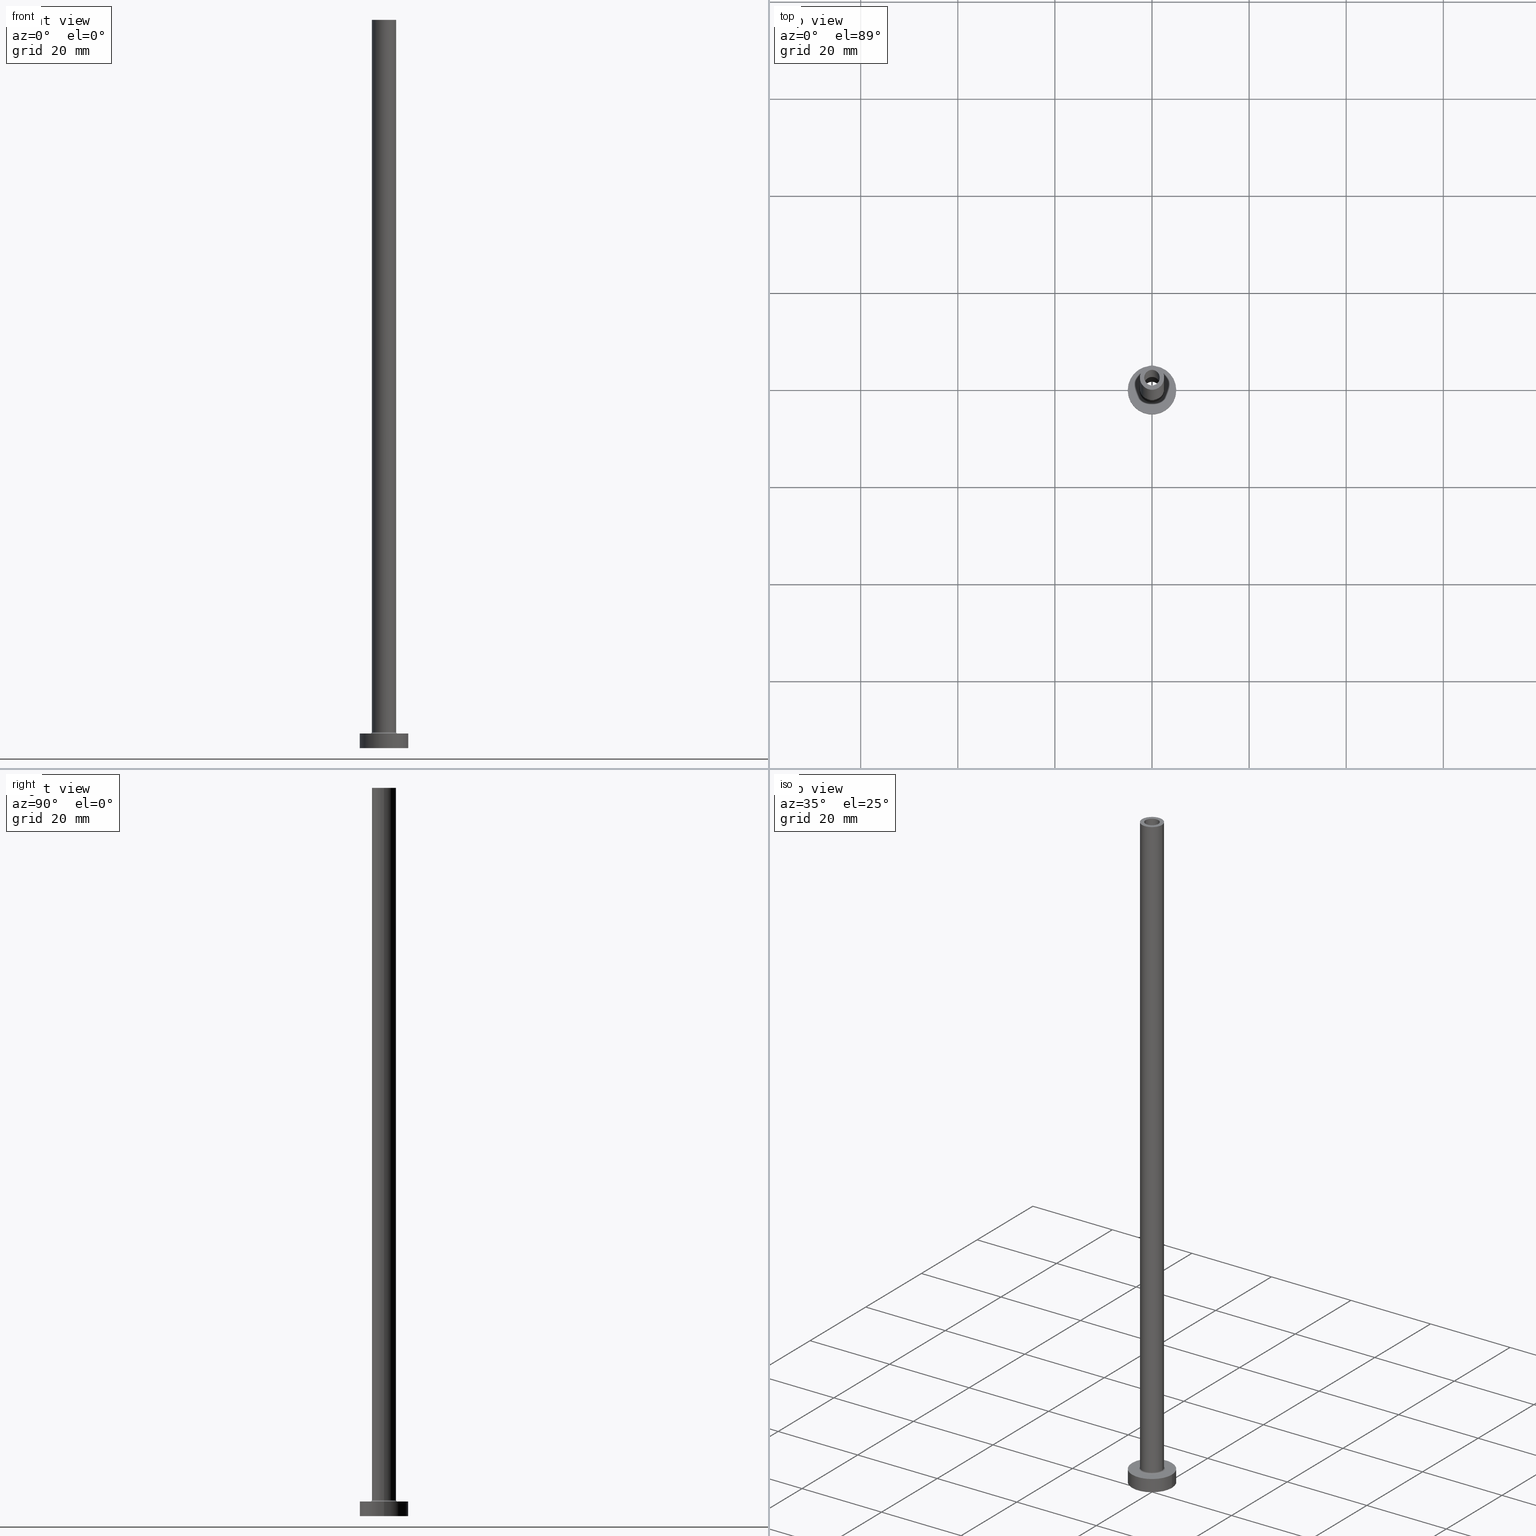
[diagram: canonical four-view strip — front | top / right | iso, engineering-drawing reading convention]
A machine part, canonical four-view strip (front | top / right | iso — engineering-drawing reading convention). The complete STEP part file that produces these views, byte-faithful:
ISO-10303-21;
HEADER;
FILE_DESCRIPTION (( 'STEP AP203' ),
    '1' );
FILE_NAME ('9501.STEP',
    '2023-02-13T12:02:50',
    ( '' ),
    ( '' ),
    'SwSTEP 2.0',
    'SolidWorks 2019',
    '' );
FILE_SCHEMA (( 'CONFIG_CONTROL_DESIGN' ));
ENDSEC;

DATA;
#1 = EDGE_LOOP ( 'NONE', ( #49, #422, #199, #314 ) ) ;
#2 = PLANE ( 'NONE',  #75 ) ;
#3 = ORIENTED_EDGE ( 'NONE', *, *, #310, .T. ) ;
#4 = EDGE_LOOP ( 'NONE', ( #117, #219 ) ) ;
#5 = DIRECTION ( 'NONE',  ( -1.000000000000000000, 0.000000000000000000, 0.000000000000000000 ) ) ;
#6 = CARTESIAN_POINT ( 'NONE',  ( 0.000000000000000000, 0.000000000000000000, 150.0000000000000000 ) ) ;
#7 = AXIS2_PLACEMENT_3D ( 'NONE', #386, #149, #81 ) ;
#8 = DATE_AND_TIME ( #389, #9 ) ;
#9 = LOCAL_TIME ( 13, 2, 50.00000000000000000, #233 ) ;
#10 = APPLICATION_CONTEXT ( 'configuration controlled 3d designs of mechanical parts and assemblies' ) ;
#11 = DIRECTION ( 'NONE',  ( -1.000000000000000000, 0.000000000000000000, 0.000000000000000000 ) ) ;
#12 = EDGE_CURVE ( 'NONE', #303, #198, #58, .T. ) ;
#13 = DIRECTION ( 'NONE',  ( 0.000000000000000000, 0.000000000000000000, -1.000000000000000000 ) ) ;
#14 = CARTESIAN_POINT ( 'NONE',  ( 0.000000000000000000, 0.000000000000000000, 3.000000000000000000 ) ) ;
#15 = VERTEX_POINT ( 'NONE', #67 ) ;
#16 = APPROVAL_DATE_TIME ( #8, #18 ) ;
#17 = DIRECTION ( 'NONE',  ( -0.000000000000000000, -0.000000000000000000, -1.000000000000000000 ) ) ;
#18 = APPROVAL ( #262, 'NEUR�EN�' ) ;
#19 = EDGE_LOOP ( 'NONE', ( #101, #249 ) ) ;
#20 = DIRECTION ( 'NONE',  ( -1.000000000000000000, 0.000000000000000000, 0.000000000000000000 ) ) ;
#21 = ADVANCED_FACE ( 'NONE', ( #210 ), #29, .F. ) ;
#22 = DIRECTION ( 'NONE',  ( 0.000000000000000000, 0.000000000000000000, 1.000000000000000000 ) ) ;
#23 = AXIS2_PLACEMENT_3D ( 'NONE', #431, #390, #84 ) ;
#24 = CARTESIAN_POINT ( 'NONE',  ( 1.750000000000000000, 2.143131898507868297E-16, 109.9497474683058442 ) ) ;
#25 = CC_DESIGN_APPROVAL ( #18, ( #129 ) ) ;
#26 = CC_DESIGN_PERSON_AND_ORGANIZATION_ASSIGNMENT ( #461, #138, ( #450 ) ) ;
#27 = VECTOR ( 'NONE', #186, 1000.000000000000000 ) ;
#28 = CARTESIAN_POINT ( 'NONE',  ( -1.750000000000000000, 0.000000000000000000, 105.0000000000000000 ) ) ;
#29 = TOROIDAL_SURFACE ( 'NONE', #231, 2.799999999999999822, 0.2999999999999999889 ) ;
#30 = AXIS2_PLACEMENT_3D ( 'NONE', #43, #152, #301 ) ;
#31 = ORIENTED_EDGE ( 'NONE', *, *, #375, .T. ) ;
#32 = EDGE_LOOP ( 'NONE', ( #57, #349, #333, #35 ) ) ;
#33 = EDGE_LOOP ( 'NONE', ( #41, #376, #251, #36 ) ) ;
#34 = CARTESIAN_POINT ( 'NONE',  ( 0.000000000000000000, 0.000000000000000000, 0.000000000000000000 ) ) ;
#35 = ORIENTED_EDGE ( 'NONE', *, *, #100, .T. ) ;
#36 = ORIENTED_EDGE ( 'NONE', *, *, #122, .F. ) ;
#37 = ORIENTED_EDGE ( 'NONE', *, *, #240, .T. ) ;
#38 = DESIGN_CONTEXT ( 'detailed design', #10, 'design' ) ;
#39 = APPROVAL_ROLE ( '' ) ;
#40 = APPROVAL_STATUS ( 'not_yet_approved' ) ;
#41 = ORIENTED_EDGE ( 'NONE', *, *, #100, .F. ) ;
#42 = DIRECTION ( 'NONE',  ( 1.000000000000000000, 0.000000000000000000, 0.000000000000000000 ) ) ;
#43 = CARTESIAN_POINT ( 'NONE',  ( 0.000000000000000000, 0.000000000000000000, 0.000000000000000000 ) ) ;
#44 = DIRECTION ( 'NONE',  ( 1.000000000000000000, 0.000000000000000000, 0.000000000000000000 ) ) ;
#45 = CIRCLE ( 'NONE', #331, 2.799999999999999822 ) ;
#46 = COORDINATED_UNIVERSAL_TIME_OFFSET ( 1, 0, .AHEAD. ) ;
#47 = DIRECTION ( 'NONE',  ( -0.000000000000000000, -0.000000000000000000, -1.000000000000000000 ) ) ;
#48 = CARTESIAN_POINT ( 'NONE',  ( 0.000000000000000000, 0.000000000000000000, 3.000000000000000000 ) ) ;
#49 = ORIENTED_EDGE ( 'NONE', *, *, #213, .F. ) ;
#50 = APPROVAL_ROLE ( '' ) ;
#51 = DIRECTION ( 'NONE',  ( 0.000000000000000000, 0.000000000000000000, -1.000000000000000000 ) ) ;
#52 = EDGE_LOOP ( 'NONE', ( #407, #3, #31, #163 ) ) ;
#53 = AXIS2_PLACEMENT_3D ( 'NONE', #324, #195, #151 ) ;
#54 = CARTESIAN_POINT ( 'NONE',  ( -2.500000000000000000, 0.000000000000000000, 3.299999999999997158 ) ) ;
#55 = DIRECTION ( 'NONE',  ( 0.000000000000000000, 0.000000000000000000, 1.000000000000000000 ) ) ;
#56 = CARTESIAN_POINT ( 'NONE',  ( 0.000000000000000000, 0.000000000000000000, 3.299999999999997158 ) ) ;
#57 = ORIENTED_EDGE ( 'NONE', *, *, #383, .F. ) ;
#58 = CIRCLE ( 'NONE', #102, 2.500000000000000000 ) ;
#59 = ORGANIZATION ( 'NEUR�EN�', 'NEUR�EN�', '' ) ;
#60 = APPROVAL ( #435, 'NEUR�EN�' ) ;
#61 = FACE_OUTER_BOUND ( 'NONE', #33, .T. ) ;
#62 = AXIS2_PLACEMENT_3D ( 'NONE', #34, #211, #319 ) ;
#63 = ORIENTED_EDGE ( 'NONE', *, *, #95, .F. ) ;
#64 = EDGE_CURVE ( 'NONE', #125, #198, #260, .T. ) ;
#65 = APPLICATION_PROTOCOL_DEFINITION ( 'international standard', 'config_control_design', 1994, #449 ) ;
#66 = CARTESIAN_POINT ( 'NONE',  ( -2.799999999999999822, 3.429011037612588783E-16, 3.299999999999997158 ) ) ;
#67 = CARTESIAN_POINT ( 'NONE',  ( 2.799999999999999822, 0.000000000000000000, 2.999999999999998668 ) ) ;
#68 = FACE_BOUND ( 'NONE', #276, .T. ) ;
#69 = VERTEX_POINT ( 'NONE', #320 ) ;
#70 = CARTESIAN_POINT ( 'NONE',  ( 0.000000000000000000, 0.000000000000000000, 3.299999999999997158 ) ) ;
#71 = PLANE ( 'NONE',  #30 ) ;
#72 = DIRECTION ( 'NONE',  ( 0.000000000000000000, 0.000000000000000000, 1.000000000000000000 ) ) ;
#73 = AXIS2_PLACEMENT_3D ( 'NONE', #433, #51, #20 ) ;
#74 = APPROVAL_DATE_TIME ( #261, #60 ) ;
#75 = AXIS2_PLACEMENT_3D ( 'NONE', #384, #377, #247 ) ;
#76 = CYLINDRICAL_SURFACE ( 'NONE', #53, 5.000000000000000000 ) ;
#77 = DIRECTION ( 'NONE',  ( -0.000000000000000000, -0.000000000000000000, -1.000000000000000000 ) ) ;
#78 = VERTEX_POINT ( 'NONE', #406 ) ;
#79 = CALENDAR_DATE ( 2023, 13, 2 ) ;
#80 = FACE_OUTER_BOUND ( 'NONE', #1, .T. ) ;
#81 = DIRECTION ( 'NONE',  ( 1.000000000000000000, 0.000000000000000000, 0.000000000000000000 ) ) ;
#82 = VECTOR ( 'NONE', #403, 1000.000000000000000 ) ;
#83 = COORDINATED_UNIVERSAL_TIME_OFFSET ( 1, 0, .AHEAD. ) ;
#84 = DIRECTION ( 'NONE',  ( 1.000000000000000000, 0.000000000000000000, -0.000000000000000000 ) ) ;
#85 = EDGE_LOOP ( 'NONE', ( #237, #215, #37, #63 ) ) ;
#86 = DIRECTION ( 'NONE',  ( 0.000000000000000000, 0.000000000000000000, -1.000000000000000000 ) ) ;
#87 = CIRCLE ( 'NONE', #7, 1.750000000000000000 ) ;
#88 = LINE ( 'NONE', #24, #290 ) ;
#89 = AXIS2_PLACEMENT_3D ( 'NONE', #400, #22, #304 ) ;
#90 = EDGE_CURVE ( 'NONE', #159, #119, #88, .T. ) ;
#91 = VECTOR ( 'NONE', #427, 1000.000000000000000 ) ;
#92 = DIRECTION ( 'NONE',  ( 1.000000000000000000, 0.000000000000000000, 0.000000000000000000 ) ) ;
#93 = ORIENTED_EDGE ( 'NONE', *, *, #90, .T. ) ;
#94 = APPROVAL ( #40, 'NEUR�EN�' ) ;
#95 = EDGE_CURVE ( 'NONE', #160, #288, #411, .T. ) ;
#96 = ORIENTED_EDGE ( 'NONE', *, *, #264, .T. ) ;
#97 = MECHANICAL_CONTEXT ( 'NONE', #449, 'mechanical' ) ;
#98 = ADVANCED_FACE ( 'NONE', ( #168, #128 ), #307, .T. ) ;
#99 = CARTESIAN_POINT ( 'NONE',  ( 0.000000000000000000, 0.000000000000000000, 105.0000000000000000 ) ) ;
#100 = EDGE_CURVE ( 'NONE', #198, #303, #113, .T. ) ;
#101 = ORIENTED_EDGE ( 'NONE', *, *, #274, .T. ) ;
#102 = AXIS2_PLACEMENT_3D ( 'NONE', #246, #289, #255 ) ;
#103 = DIRECTION ( 'NONE',  ( -1.000000000000000000, 1.224646799147353207E-16, 0.000000000000000000 ) ) ;
#104 = DIRECTION ( 'NONE',  ( 0.000000000000000000, 0.000000000000000000, 1.000000000000000000 ) ) ;
#105 = ADVANCED_BREP_SHAPE_REPRESENTATION ( '9501', ( #134, #62 ), #130 ) ;
#106 = CIRCLE ( 'NONE', #172, 2.799999999999999822 ) ;
#107 = PERSON_AND_ORGANIZATION_ROLE ( 'classification_officer' ) ;
#108 = DIRECTION ( 'NONE',  ( 1.000000000000000000, 0.000000000000000000, 0.000000000000000000 ) ) ;
#109 = DIRECTION ( 'NONE',  ( 0.000000000000000000, 0.000000000000000000, -1.000000000000000000 ) ) ;
#110 = DATE_AND_TIME ( #268, #306 ) ;
#111 = PRODUCT_DEFINITION ( 'NEZN�M�', '', #212, #38 ) ;
#112 = DIRECTION ( 'NONE',  ( 1.000000000000000000, 0.000000000000000000, 0.000000000000000000 ) ) ;
#113 = CIRCLE ( 'NONE', #177, 2.500000000000000000 ) ;
#114 = DIRECTION ( 'NONE',  ( -0.000000000000000000, -0.000000000000000000, -1.000000000000000000 ) ) ;
#115 = CIRCLE ( 'NONE', #136, 1.750000000000000000 ) ;
#116 = DIRECTION ( 'NONE',  ( 1.000000000000000000, 0.000000000000000000, 0.000000000000000000 ) ) ;
#117 = ORIENTED_EDGE ( 'NONE', *, *, #245, .F. ) ;
#118 = CARTESIAN_POINT ( 'NONE',  ( 2.500000000000000000, 3.061616997868383141E-16, 3.299999999999997158 ) ) ;
#119 = VERTEX_POINT ( 'NONE', #281 ) ;
#120 = EDGE_LOOP ( 'NONE', ( #425, #270 ) ) ;
#121 = ORIENTED_EDGE ( 'NONE', *, *, #170, .T. ) ;
#122 = EDGE_CURVE ( 'NONE', #303, #15, #291, .T. ) ;
#123 = VERTEX_POINT ( 'NONE', #174 ) ;
#124 = CIRCLE ( 'NONE', #171, 1.750000000000000000 ) ;
#125 = VERTEX_POINT ( 'NONE', #280 ) ;
#126 = CARTESIAN_POINT ( 'NONE',  ( -5.000000000000000000, 0.000000000000000000, 3.000000000000000000 ) ) ;
#127 = CARTESIAN_POINT ( 'NONE',  ( 1.600000000000000089, 1.959434878635764737E-16, 105.0000000000000000 ) ) ;
#128 = FACE_OUTER_BOUND ( 'NONE', #267, .T. ) ;
#129 = SECURITY_CLASSIFICATION ( '', '', #187 ) ;
#130 =( GEOMETRIC_REPRESENTATION_CONTEXT ( 3 ) GLOBAL_UNCERTAINTY_ASSIGNED_CONTEXT ( ( #217 ) ) GLOBAL_UNIT_ASSIGNED_CONTEXT ( ( #175, #417, #141 ) ) REPRESENTATION_CONTEXT ( 'NONE', 'WORKASPACE' ) );
#131 = DIRECTION ( 'NONE',  ( -0.000000000000000000, -0.000000000000000000, -1.000000000000000000 ) ) ;
#132 = CLOSED_SHELL ( 'NONE', ( #421, #208, #447, #242, #239, #202, #98, #292, #424, #173, #21, #279, #440, #253 ) ) ;
#133 = CARTESIAN_POINT ( 'NONE',  ( -5.000000000000000000, 0.000000000000000000, 3.000000000000000000 ) ) ;
#134 = MANIFOLD_SOLID_BREP ( 'Odebrat vysunut�m4', #132 ) ;
#135 = DIRECTION ( 'NONE',  ( 0.000000000000000000, 0.000000000000000000, 1.000000000000000000 ) ) ;
#136 = AXIS2_PLACEMENT_3D ( 'NONE', #391, #156, #325 ) ;
#137 = VERTEX_POINT ( 'NONE', #127 ) ;
#138 = PERSON_AND_ORGANIZATION_ROLE ( 'design_owner' ) ;
#139 = VERTEX_POINT ( 'NONE', #28 ) ;
#140 = ORIENTED_EDGE ( 'NONE', *, *, #282, .T. ) ;
#141 =( NAMED_UNIT ( * ) SI_UNIT ( $, .STERADIAN. ) SOLID_ANGLE_UNIT ( ) );
#142 = ORIENTED_EDGE ( 'NONE', *, *, #371, .T. ) ;
#143 = LINE ( 'NONE', #423, #226 ) ;
#144 = CIRCLE ( 'NONE', #278, 5.000000000000000000 ) ;
#145 = CC_DESIGN_APPROVAL ( #94, ( #111 ) ) ;
#146 = CARTESIAN_POINT ( 'NONE',  ( -5.000000000000000000, 0.000000000000000000, 0.000000000000000000 ) ) ;
#147 = APPROVAL_DATE_TIME ( #426, #94 ) ;
#148 = FACE_OUTER_BOUND ( 'NONE', #229, .T. ) ;
#149 = DIRECTION ( 'NONE',  ( 0.000000000000000000, 0.000000000000000000, 1.000000000000000000 ) ) ;
#150 = PERSON_AND_ORGANIZATION_ROLE ( 'creator' ) ;
#151 = DIRECTION ( 'NONE',  ( -1.000000000000000000, 0.000000000000000000, 0.000000000000000000 ) ) ;
#152 = DIRECTION ( 'NONE',  ( 0.000000000000000000, 0.000000000000000000, 1.000000000000000000 ) ) ;
#153 = VERTEX_POINT ( 'NONE', #248 ) ;
#154 = PERSON_AND_ORGANIZATION ( #220, #59 ) ;
#155 = DIRECTION ( 'NONE',  ( 1.000000000000000000, 0.000000000000000000, 0.000000000000000000 ) ) ;
#156 = DIRECTION ( 'NONE',  ( 0.000000000000000000, 0.000000000000000000, 1.000000000000000000 ) ) ;
#157 = AXIS2_PLACEMENT_3D ( 'NONE', #273, #322, #192 ) ;
#158 = AXIS2_PLACEMENT_3D ( 'NONE', #214, #347, #343 ) ;
#159 = VERTEX_POINT ( 'NONE', #345 ) ;
#160 = VERTEX_POINT ( 'NONE', #133 ) ;
#161 = PERSON_AND_ORGANIZATION ( #220, #59 ) ;
#162 = CC_DESIGN_PERSON_AND_ORGANIZATION_ASSIGNMENT ( #398, #223, ( #212 ) ) ;
#163 = ORIENTED_EDGE ( 'NONE', *, *, #164, .F. ) ;
#164 = EDGE_CURVE ( 'NONE', #137, #69, #399, .T. ) ;
#165 = ORIENTED_EDGE ( 'NONE', *, *, #122, .T. ) ;
#166 = EDGE_CURVE ( 'NONE', #305, #137, #218, .T. ) ;
#167 = DIRECTION ( 'NONE',  ( 0.000000000000000000, 0.000000000000000000, 1.000000000000000000 ) ) ;
#168 = FACE_BOUND ( 'NONE', #418, .T. ) ;
#169 = ORIENTED_EDGE ( 'NONE', *, *, #201, .T. ) ;
#170 = EDGE_CURVE ( 'NONE', #139, #78, #452, .T. ) ;
#171 = AXIS2_PLACEMENT_3D ( 'NONE', #271, #47, #222 ) ;
#172 = AXIS2_PLACEMENT_3D ( 'NONE', #437, #114, #394 ) ;
#173 = ADVANCED_FACE ( 'NONE', ( #68, #221 ), #354, .T. ) ;
#174 = CARTESIAN_POINT ( 'NONE',  ( -1.600000000000000089, 0.000000000000000000, 150.0000000000000000 ) ) ;
#175 =( LENGTH_UNIT ( ) NAMED_UNIT ( * ) SI_UNIT ( .MILLI., .METRE. ) );
#176 = FACE_OUTER_BOUND ( 'NONE', #32, .T. ) ;
#177 = AXIS2_PLACEMENT_3D ( 'NONE', #56, #167, #92 ) ;
#178 = DIRECTION ( 'NONE',  ( 1.000000000000000000, 0.000000000000000000, 0.000000000000000000 ) ) ;
#179 = EDGE_CURVE ( 'NONE', #119, #78, #335, .T. ) ;
#180 = ORIENTED_EDGE ( 'NONE', *, *, #311, .T. ) ;
#181 = DIRECTION ( 'NONE',  ( -1.000000000000000000, 0.000000000000000000, 0.000000000000000000 ) ) ;
#182 = LOCAL_TIME ( 13, 2, 50.00000000000000000, #46 ) ;
#183 = ORIENTED_EDGE ( 'NONE', *, *, #12, .F. ) ;
#184 = COORDINATED_UNIVERSAL_TIME_OFFSET ( 1, 0, .AHEAD. ) ;
#185 = FACE_OUTER_BOUND ( 'NONE', #120, .T. ) ;
#186 = DIRECTION ( 'NONE',  ( -0.000000000000000000, -0.000000000000000000, -1.000000000000000000 ) ) ;
#187 = SECURITY_CLASSIFICATION_LEVEL ( 'unclassified' ) ;
#188 = DIRECTION ( 'NONE',  ( -1.000000000000000000, 0.000000000000000000, 0.000000000000000000 ) ) ;
#189 = FACE_OUTER_BOUND ( 'NONE', #85, .T. ) ;
#190 = CARTESIAN_POINT ( 'NONE',  ( 0.000000000000000000, 0.000000000000000000, 150.0000000000000000 ) ) ;
#191 = ORIENTED_EDGE ( 'NONE', *, *, #310, .F. ) ;
#192 = DIRECTION ( 'NONE',  ( -1.000000000000000000, 0.000000000000000000, 0.000000000000000000 ) ) ;
#193 = DIRECTION ( 'NONE',  ( 0.000000000000000000, 0.000000000000000000, 1.000000000000000000 ) ) ;
#194 = PERSON_AND_ORGANIZATION_ROLE ( 'creator' ) ;
#195 = DIRECTION ( 'NONE',  ( -0.000000000000000000, -0.000000000000000000, -1.000000000000000000 ) ) ;
#196 = CARTESIAN_POINT ( 'NONE',  ( 0.000000000000000000, 0.000000000000000000, 150.0000000000000000 ) ) ;
#197 = AXIS2_PLACEMENT_3D ( 'NONE', #256, #420, #181 ) ;
#198 = VERTEX_POINT ( 'NONE', #54 ) ;
#199 = ORIENTED_EDGE ( 'NONE', *, *, #12, .T. ) ;
#200 = DIRECTION ( 'NONE',  ( 1.000000000000000000, 0.000000000000000000, 0.000000000000000000 ) ) ;
#201 = EDGE_CURVE ( 'NONE', #69, #137, #454, .T. ) ;
#202 = ADVANCED_FACE ( 'NONE', ( #234 ), #387, .T. ) ;
#203 = AXIS2_PLACEMENT_3D ( 'NONE', #263, #109, #188 ) ;
#204 = CIRCLE ( 'NONE', #368, 5.000000000000000000 ) ;
#205 = CC_DESIGN_PERSON_AND_ORGANIZATION_ASSIGNMENT ( #265, #107, ( #129 ) ) ;
#206 = ORIENTED_EDGE ( 'NONE', *, *, #166, .T. ) ;
#207 = AXIS2_PLACEMENT_3D ( 'NONE', #451, #445, #401 ) ;
#208 = ADVANCED_FACE ( 'NONE', ( #148 ), #225, .F. ) ;
#209 = AXIS2_PLACEMENT_3D ( 'NONE', #99, #135, #178 ) ;
#210 = FACE_OUTER_BOUND ( 'NONE', #428, .T. ) ;
#211 = DIRECTION ( 'NONE',  ( 0.000000000000000000, 0.000000000000000000, 1.000000000000000000 ) ) ;
#212 = PRODUCT_DEFINITION_FORMATION_WITH_SPECIFIED_SOURCE ( 'LIBOVOLN�', '', #450, .NOT_KNOWN. ) ;
#213 = EDGE_CURVE ( 'NONE', #308, #125, #409, .T. ) ;
#214 = CARTESIAN_POINT ( 'NONE',  ( 0.000000000000000000, 0.000000000000000000, 3.299999999999997158 ) ) ;
#215 = ORIENTED_EDGE ( 'NONE', *, *, #413, .T. ) ;
#216 = AXIS2_PLACEMENT_3D ( 'NONE', #436, #361, #300 ) ;
#217 = UNCERTAINTY_MEASURE_WITH_UNIT (LENGTH_MEASURE( 1.000000000000000082E-05 ), #175, 'distance_accuracy_value', 'NONE');
#218 = LINE ( 'NONE', #348, #241 ) ;
#219 = ORIENTED_EDGE ( 'NONE', *, *, #179, .F. ) ;
#220 = PERSON ( 'NEUR�EN�', 'NEUR�EN�', 'NEUR�EN�', ('NEUR�EN�'), ('NEUR�EN�'), ('NEUR�EN�') ) ;
#221 = FACE_OUTER_BOUND ( 'NONE', #19, .T. ) ;
#222 = DIRECTION ( 'NONE',  ( 1.000000000000000000, 0.000000000000000000, 0.000000000000000000 ) ) ;
#223 = PERSON_AND_ORGANIZATION_ROLE ( 'design_supplier' ) ;
#224 = DIRECTION ( 'NONE',  ( 0.000000000000000000, 0.000000000000000000, -1.000000000000000000 ) ) ;
#225 = CYLINDRICAL_SURFACE ( 'NONE', #73, 1.750000000000000000 ) ;
#226 = VECTOR ( 'NONE', #131, 1000.000000000000000 ) ;
#227 = DIRECTION ( 'NONE',  ( 1.000000000000000000, 0.000000000000000000, 0.000000000000000000 ) ) ;
#228 = CALENDAR_DATE ( 2023, 13, 2 ) ;
#229 = EDGE_LOOP ( 'NONE', ( #402, #93, #456, #415 ) ) ;
#230 = CYLINDRICAL_SURFACE ( 'NONE', #367, 2.500000000000000000 ) ;
#231 = AXIS2_PLACEMENT_3D ( 'NONE', #70, #104, #42 ) ;
#232 = CARTESIAN_POINT ( 'NONE',  ( -2.799999999999999822, 3.429011037612589276E-16, 2.999999999999998668 ) ) ;
#233 = COORDINATED_UNIVERSAL_TIME_OFFSET ( 1, 0, .AHEAD. ) ;
#234 = FACE_OUTER_BOUND ( 'NONE', #257, .T. ) ;
#235 = LINE ( 'NONE', #369, #378 ) ;
#236 = AXIS2_PLACEMENT_3D ( 'NONE', #293, #429, #5 ) ;
#237 = ORIENTED_EDGE ( 'NONE', *, *, #344, .F. ) ;
#238 = ORIENTED_EDGE ( 'NONE', *, *, #375, .F. ) ;
#239 = ADVANCED_FACE ( 'NONE', ( #189 ), #76, .T. ) ;
#240 = EDGE_CURVE ( 'NONE', #243, #288, #258, .T. ) ;
#241 = VECTOR ( 'NONE', #224, 1000.000000000000000 ) ;
#242 = ADVANCED_FACE ( 'NONE', ( #80 ), #230, .T. ) ;
#243 = VERTEX_POINT ( 'NONE', #321 ) ;
#244 = AXIS2_PLACEMENT_3D ( 'NONE', #190, #444, #112 ) ;
#245 = EDGE_CURVE ( 'NONE', #78, #119, #124, .T. ) ;
#246 = CARTESIAN_POINT ( 'NONE',  ( 0.000000000000000000, 0.000000000000000000, 3.299999999999997158 ) ) ;
#247 = DIRECTION ( 'NONE',  ( 1.000000000000000000, 0.000000000000000000, -0.000000000000000000 ) ) ;
#248 = CARTESIAN_POINT ( 'NONE',  ( 5.000000000000000000, 6.123233995736766282E-16, 3.000000000000000000 ) ) ;
#249 = ORIENTED_EDGE ( 'NONE', *, *, #213, .T. ) ;
#250 = LOCAL_TIME ( 13, 2, 50.00000000000000000, #184 ) ;
#251 = ORIENTED_EDGE ( 'NONE', *, *, #315, .F. ) ;
#252 = APPLICATION_PROTOCOL_DEFINITION ( 'international standard', 'config_control_design', 1994, #10 ) ;
#253 = ADVANCED_FACE ( 'NONE', ( #297 ), #363, .F. ) ;
#254 = EDGE_CURVE ( 'NONE', #139, #159, #87, .T. ) ;
#255 = DIRECTION ( 'NONE',  ( 1.000000000000000000, 0.000000000000000000, 0.000000000000000000 ) ) ;
#256 = CARTESIAN_POINT ( 'NONE',  ( 0.000000000000000000, 0.000000000000000000, 150.0000000000000000 ) ) ;
#257 = EDGE_LOOP ( 'NONE', ( #459, #370, #379, #96 ) ) ;
#258 = CIRCLE ( 'NONE', #312, 5.000000000000000000 ) ;
#259 = APPROVAL_PERSON_ORGANIZATION ( #154, #60, #50 ) ;
#260 = LINE ( 'NONE', #385, #27 ) ;
#261 = DATE_AND_TIME ( #79, #182 ) ;
#262 = APPROVAL_STATUS ( 'not_yet_approved' ) ;
#263 = CARTESIAN_POINT ( 'NONE',  ( 0.000000000000000000, 0.000000000000000000, 109.9497474683058442 ) ) ;
#264 = EDGE_CURVE ( 'NONE', #288, #243, #144, .T. ) ;
#265 = PERSON_AND_ORGANIZATION ( #220, #59 ) ;
#266 = CARTESIAN_POINT ( 'NONE',  ( 1.600000000000000089, 1.959434878635764737E-16, 150.0000000000000000 ) ) ;
#267 = EDGE_LOOP ( 'NONE', ( #365, #351 ) ) ;
#268 = CALENDAR_DATE ( 2023, 13, 2 ) ;
#269 = DIRECTION ( 'NONE',  ( 0.000000000000000000, 0.000000000000000000, 1.000000000000000000 ) ) ;
#270 = ORIENTED_EDGE ( 'NONE', *, *, #311, .F. ) ;
#271 = CARTESIAN_POINT ( 'NONE',  ( 0.000000000000000000, 0.000000000000000000, 0.000000000000000000 ) ) ;
#272 = PERSON_AND_ORGANIZATION ( #220, #59 ) ;
#273 = CARTESIAN_POINT ( 'NONE',  ( 0.000000000000000000, 0.000000000000000000, 3.000000000000000000 ) ) ;
#274 = EDGE_CURVE ( 'NONE', #125, #308, #393, .T. ) ;
#275 = CARTESIAN_POINT ( 'NONE',  ( -1.600000000000000089, 0.000000000000000000, 150.0000000000000000 ) ) ;
#276 = EDGE_LOOP ( 'NONE', ( #374, #191 ) ) ;
#277 = DIRECTION ( 'NONE',  ( 0.000000000000000000, 0.000000000000000000, -1.000000000000000000 ) ) ;
#278 = AXIS2_PLACEMENT_3D ( 'NONE', #295, #357, #227 ) ;
#279 = ADVANCED_FACE ( 'NONE', ( #432 ), #388, .F. ) ;
#280 = CARTESIAN_POINT ( 'NONE',  ( -2.500000000000000000, 0.000000000000000000, 150.0000000000000000 ) ) ;
#281 = CARTESIAN_POINT ( 'NONE',  ( 1.750000000000000000, 2.143131898507868297E-16, 0.000000000000000000 ) ) ;
#282 = EDGE_CURVE ( 'NONE', #353, #15, #45, .T. ) ;
#283 = FACE_BOUND ( 'NONE', #286, .T. ) ;
#284 = EDGE_LOOP ( 'NONE', ( #380, #180, #121, #412 ) ) ;
#285 = DIRECTION ( 'NONE',  ( 1.224646799147353207E-16, 1.000000000000000000, -0.000000000000000000 ) ) ;
#286 = EDGE_LOOP ( 'NONE', ( #169, #318 ) ) ;
#287 = CYLINDRICAL_SURFACE ( 'NONE', #236, 1.600000000000000089 ) ;
#288 = VERTEX_POINT ( 'NONE', #146 ) ;
#289 = DIRECTION ( 'NONE',  ( 0.000000000000000000, 0.000000000000000000, 1.000000000000000000 ) ) ;
#290 = VECTOR ( 'NONE', #277, 1000.000000000000000 ) ;
#291 = CIRCLE ( 'NONE', #416, 0.2999999999999999334 ) ;
#292 = ADVANCED_FACE ( 'NONE', ( #356, #442 ), #71, .F. ) ;
#293 = CARTESIAN_POINT ( 'NONE',  ( 0.000000000000000000, 0.000000000000000000, 150.0000000000000000 ) ) ;
#294 = CIRCLE ( 'NONE', #244, 1.600000000000000089 ) ;
#295 = CARTESIAN_POINT ( 'NONE',  ( 0.000000000000000000, 0.000000000000000000, 0.000000000000000000 ) ) ;
#296 = CARTESIAN_POINT ( 'NONE',  ( 0.000000000000000000, 0.000000000000000000, 0.000000000000000000 ) ) ;
#297 = FACE_OUTER_BOUND ( 'NONE', #52, .T. ) ;
#298 = ORIENTED_EDGE ( 'NONE', *, *, #408, .F. ) ;
#299 = AXIS2_PLACEMENT_3D ( 'NONE', #396, #364, #116 ) ;
#300 = DIRECTION ( 'NONE',  ( 1.000000000000000000, 0.000000000000000000, 0.000000000000000000 ) ) ;
#301 = DIRECTION ( 'NONE',  ( 1.000000000000000000, 0.000000000000000000, -0.000000000000000000 ) ) ;
#302 = PERSON_AND_ORGANIZATION ( #220, #59 ) ;
#303 = VERTEX_POINT ( 'NONE', #118 ) ;
#304 = DIRECTION ( 'NONE',  ( 1.000000000000000000, 0.000000000000000000, 0.000000000000000000 ) ) ;
#305 = VERTEX_POINT ( 'NONE', #266 ) ;
#306 = LOCAL_TIME ( 13, 2, 50.00000000000000000, #366 ) ;
#307 = PLANE ( 'NONE',  #207 ) ;
#308 = VERTEX_POINT ( 'NONE', #323 ) ;
#309 = DIRECTION ( 'NONE',  ( 0.000000000000000000, -1.000000000000000000, 0.000000000000000000 ) ) ;
#310 = EDGE_CURVE ( 'NONE', #305, #123, #294, .T. ) ;
#311 = EDGE_CURVE ( 'NONE', #159, #139, #115, .T. ) ;
#312 = AXIS2_PLACEMENT_3D ( 'NONE', #296, #269, #155 ) ;
#313 = CC_DESIGN_PERSON_AND_ORGANIZATION_ASSIGNMENT ( #161, #150, ( #212 ) ) ;
#314 = ORIENTED_EDGE ( 'NONE', *, *, #64, .F. ) ;
#315 = EDGE_CURVE ( 'NONE', #15, #353, #106, .T. ) ;
#316 = CIRCLE ( 'NONE', #419, 0.2999999999999999334 ) ;
#317 = CALENDAR_DATE ( 2023, 13, 2 ) ;
#318 = ORIENTED_EDGE ( 'NONE', *, *, #164, .T. ) ;
#319 = DIRECTION ( 'NONE',  ( 1.000000000000000000, 0.000000000000000000, 0.000000000000000000 ) ) ;
#320 = CARTESIAN_POINT ( 'NONE',  ( -1.600000000000000089, 0.000000000000000000, 105.0000000000000000 ) ) ;
#321 = CARTESIAN_POINT ( 'NONE',  ( 5.000000000000000000, 6.123233995736766282E-16, 0.000000000000000000 ) ) ;
#322 = DIRECTION ( 'NONE',  ( -0.000000000000000000, -0.000000000000000000, -1.000000000000000000 ) ) ;
#323 = CARTESIAN_POINT ( 'NONE',  ( 2.500000000000000000, 3.061616997868383141E-16, 150.0000000000000000 ) ) ;
#324 = CARTESIAN_POINT ( 'NONE',  ( 0.000000000000000000, 0.000000000000000000, 3.000000000000000000 ) ) ;
#325 = DIRECTION ( 'NONE',  ( 1.000000000000000000, 0.000000000000000000, 0.000000000000000000 ) ) ;
#326 = ORIENTED_EDGE ( 'NONE', *, *, #282, .F. ) ;
#327 = CC_DESIGN_DATE_AND_TIME_ASSIGNMENT ( #329, #395, ( #129 ) ) ;
#328 = DIRECTION ( 'NONE',  ( 1.000000000000000000, 0.000000000000000000, 0.000000000000000000 ) ) ;
#329 = DATE_AND_TIME ( #228, #338 ) ;
#330 = APPROVAL_PERSON_ORGANIZATION ( #350, #94, #39 ) ;
#331 = AXIS2_PLACEMENT_3D ( 'NONE', #14, #17, #397 ) ;
#332 = CARTESIAN_POINT ( 'NONE',  ( 0.000000000000000000, 0.000000000000000000, 150.0000000000000000 ) ) ;
#333 = ORIENTED_EDGE ( 'NONE', *, *, #64, .T. ) ;
#334 = CARTESIAN_POINT ( 'NONE',  ( 0.000000000000000000, 0.000000000000000000, 3.000000000000000000 ) ) ;
#335 = CIRCLE ( 'NONE', #216, 1.750000000000000000 ) ;
#336 = AXIS2_PLACEMENT_3D ( 'NONE', #358, #439, #108 ) ;
#337 = CARTESIAN_POINT ( 'NONE',  ( 2.799999999999999822, 0.000000000000000000, 3.299999999999997158 ) ) ;
#338 = LOCAL_TIME ( 13, 2, 50.00000000000000000, #83 ) ;
#339 = ORIENTED_EDGE ( 'NONE', *, *, #240, .F. ) ;
#340 = EDGE_LOOP ( 'NONE', ( #382, #339 ) ) ;
#341 = AXIS2_PLACEMENT_3D ( 'NONE', #332, #13, #434 ) ;
#342 = TOROIDAL_SURFACE ( 'NONE', #158, 2.799999999999999822, 0.2999999999999999889 ) ;
#343 = DIRECTION ( 'NONE',  ( 1.000000000000000000, 0.000000000000000000, 0.000000000000000000 ) ) ;
#344 = EDGE_CURVE ( 'NONE', #153, #160, #204, .T. ) ;
#345 = CARTESIAN_POINT ( 'NONE',  ( 1.750000000000000000, 2.143131898507868297E-16, 105.0000000000000000 ) ) ;
#346 = CYLINDRICAL_SURFACE ( 'NONE', #197, 2.500000000000000000 ) ;
#347 = DIRECTION ( 'NONE',  ( 0.000000000000000000, 0.000000000000000000, 1.000000000000000000 ) ) ;
#348 = CARTESIAN_POINT ( 'NONE',  ( 1.600000000000000089, 1.959434878635764737E-16, 150.0000000000000000 ) ) ;
#349 = ORIENTED_EDGE ( 'NONE', *, *, #274, .F. ) ;
#350 = PERSON_AND_ORGANIZATION ( #220, #59 ) ;
#351 = ORIENTED_EDGE ( 'NONE', *, *, #344, .T. ) ;
#352 = VECTOR ( 'NONE', #86, 1000.000000000000000 ) ;
#353 = VERTEX_POINT ( 'NONE', #232 ) ;
#354 = PLANE ( 'NONE',  #23 ) ;
#355 = PRODUCT_RELATED_PRODUCT_CATEGORY ( 'detail', '', ( #450 ) ) ;
#356 = FACE_BOUND ( 'NONE', #4, .T. ) ;
#357 = DIRECTION ( 'NONE',  ( 0.000000000000000000, 0.000000000000000000, 1.000000000000000000 ) ) ;
#358 = CARTESIAN_POINT ( 'NONE',  ( 0.000000000000000000, 0.000000000000000000, 150.0000000000000000 ) ) ;
#359 = EDGE_CURVE ( 'NONE', #160, #153, #405, .T. ) ;
#360 = SHAPE_DEFINITION_REPRESENTATION ( #372, #105 ) ;
#361 = DIRECTION ( 'NONE',  ( -0.000000000000000000, -0.000000000000000000, -1.000000000000000000 ) ) ;
#362 = CC_DESIGN_DATE_AND_TIME_ASSIGNMENT ( #110, #438, ( #111 ) ) ;
#363 = CYLINDRICAL_SURFACE ( 'NONE', #341, 1.600000000000000089 ) ;
#364 = DIRECTION ( 'NONE',  ( 0.000000000000000000, 0.000000000000000000, 1.000000000000000000 ) ) ;
#365 = ORIENTED_EDGE ( 'NONE', *, *, #359, .T. ) ;
#366 = COORDINATED_UNIVERSAL_TIME_OFFSET ( 1, 0, .AHEAD. ) ;
#367 = AXIS2_PLACEMENT_3D ( 'NONE', #196, #77, #11 ) ;
#368 = AXIS2_PLACEMENT_3D ( 'NONE', #48, #193, #328 ) ;
#369 = CARTESIAN_POINT ( 'NONE',  ( 2.500000000000000000, 3.061616997868383141E-16, 150.0000000000000000 ) ) ;
#370 = ORIENTED_EDGE ( 'NONE', *, *, #359, .F. ) ;
#371 = EDGE_CURVE ( 'NONE', #123, #305, #430, .T. ) ;
#372 = PRODUCT_DEFINITION_SHAPE ( 'NONE', 'NONE',  #111 ) ;
#373 = DIRECTION ( 'NONE',  ( 0.000000000000000000, 0.000000000000000000, -1.000000000000000000 ) ) ;
#374 = ORIENTED_EDGE ( 'NONE', *, *, #371, .F. ) ;
#375 = EDGE_CURVE ( 'NONE', #123, #69, #448, .T. ) ;
#376 = ORIENTED_EDGE ( 'NONE', *, *, #408, .T. ) ;
#377 = DIRECTION ( 'NONE',  ( 0.000000000000000000, 0.000000000000000000, 1.000000000000000000 ) ) ;
#378 = VECTOR ( 'NONE', #458, 1000.000000000000000 ) ;
#379 = ORIENTED_EDGE ( 'NONE', *, *, #95, .T. ) ;
#380 = ORIENTED_EDGE ( 'NONE', *, *, #90, .F. ) ;
#381 = FACE_OUTER_BOUND ( 'NONE', #457, .T. ) ;
#382 = ORIENTED_EDGE ( 'NONE', *, *, #264, .F. ) ;
#383 = EDGE_CURVE ( 'NONE', #308, #303, #235, .T. ) ;
#384 = CARTESIAN_POINT ( 'NONE',  ( 0.000000000000000000, 0.000000000000000000, 105.0000000000000000 ) ) ;
#385 = CARTESIAN_POINT ( 'NONE',  ( -2.500000000000000000, 0.000000000000000000, 150.0000000000000000 ) ) ;
#386 = CARTESIAN_POINT ( 'NONE',  ( 0.000000000000000000, 0.000000000000000000, 105.0000000000000000 ) ) ;
#387 = CYLINDRICAL_SURFACE ( 'NONE', #157, 5.000000000000000000 ) ;
#388 = CYLINDRICAL_SURFACE ( 'NONE', #203, 1.750000000000000000 ) ;
#389 = CALENDAR_DATE ( 2023, 13, 2 ) ;
#390 = DIRECTION ( 'NONE',  ( 0.000000000000000000, 0.000000000000000000, 1.000000000000000000 ) ) ;
#391 = CARTESIAN_POINT ( 'NONE',  ( 0.000000000000000000, 0.000000000000000000, 105.0000000000000000 ) ) ;
#392 = APPROVAL_ROLE ( '' ) ;
#393 = CIRCLE ( 'NONE', #404, 2.500000000000000000 ) ;
#394 = DIRECTION ( 'NONE',  ( 1.000000000000000000, 0.000000000000000000, 0.000000000000000000 ) ) ;
#395 = DATE_TIME_ROLE ( 'classification_date' ) ;
#396 = CARTESIAN_POINT ( 'NONE',  ( 0.000000000000000000, 0.000000000000000000, 105.0000000000000000 ) ) ;
#397 = DIRECTION ( 'NONE',  ( 1.000000000000000000, 0.000000000000000000, 0.000000000000000000 ) ) ;
#398 = PERSON_AND_ORGANIZATION ( #220, #59 ) ;
#399 = CIRCLE ( 'NONE', #209, 1.600000000000000089 ) ;
#400 = CARTESIAN_POINT ( 'NONE',  ( 0.000000000000000000, 0.000000000000000000, 150.0000000000000000 ) ) ;
#401 = DIRECTION ( 'NONE',  ( 1.000000000000000000, 0.000000000000000000, -0.000000000000000000 ) ) ;
#402 = ORIENTED_EDGE ( 'NONE', *, *, #254, .T. ) ;
#403 = DIRECTION ( 'NONE',  ( -0.000000000000000000, -0.000000000000000000, -1.000000000000000000 ) ) ;
#404 = AXIS2_PLACEMENT_3D ( 'NONE', #6, #72, #44 ) ;
#405 = CIRCLE ( 'NONE', #460, 5.000000000000000000 ) ;
#406 = CARTESIAN_POINT ( 'NONE',  ( -1.750000000000000000, 0.000000000000000000, 0.000000000000000000 ) ) ;
#407 = ORIENTED_EDGE ( 'NONE', *, *, #166, .F. ) ;
#408 = EDGE_CURVE ( 'NONE', #198, #353, #316, .T. ) ;
#409 = CIRCLE ( 'NONE', #336, 2.500000000000000000 ) ;
#410 = CC_DESIGN_APPROVAL ( #60, ( #212 ) ) ;
#411 = LINE ( 'NONE', #126, #82 ) ;
#412 = ORIENTED_EDGE ( 'NONE', *, *, #245, .T. ) ;
#413 = EDGE_CURVE ( 'NONE', #153, #243, #143, .T. ) ;
#414 = ORIENTED_EDGE ( 'NONE', *, *, #315, .T. ) ;
#415 = ORIENTED_EDGE ( 'NONE', *, *, #170, .F. ) ;
#416 = AXIS2_PLACEMENT_3D ( 'NONE', #337, #309, #373 ) ;
#417 =( NAMED_UNIT ( * ) PLANE_ANGLE_UNIT ( ) SI_UNIT ( $, .RADIAN. ) );
#418 = EDGE_LOOP ( 'NONE', ( #414, #140 ) ) ;
#419 = AXIS2_PLACEMENT_3D ( 'NONE', #66, #285, #103 ) ;
#420 = DIRECTION ( 'NONE',  ( -0.000000000000000000, -0.000000000000000000, -1.000000000000000000 ) ) ;
#421 = ADVANCED_FACE ( 'NONE', ( #381 ), #287, .F. ) ;
#422 = ORIENTED_EDGE ( 'NONE', *, *, #383, .T. ) ;
#423 = CARTESIAN_POINT ( 'NONE',  ( 5.000000000000000000, 6.123233995736766282E-16, 3.000000000000000000 ) ) ;
#424 = ADVANCED_FACE ( 'NONE', ( #176 ), #346, .T. ) ;
#425 = ORIENTED_EDGE ( 'NONE', *, *, #254, .F. ) ;
#426 = DATE_AND_TIME ( #317, #250 ) ;
#427 = DIRECTION ( 'NONE',  ( 0.000000000000000000, 0.000000000000000000, -1.000000000000000000 ) ) ;
#428 = EDGE_LOOP ( 'NONE', ( #298, #183, #165, #326 ) ) ;
#429 = DIRECTION ( 'NONE',  ( 0.000000000000000000, 0.000000000000000000, -1.000000000000000000 ) ) ;
#430 = CIRCLE ( 'NONE', #89, 1.600000000000000089 ) ;
#431 = CARTESIAN_POINT ( 'NONE',  ( 0.000000000000000000, 0.000000000000000000, 150.0000000000000000 ) ) ;
#432 = FACE_OUTER_BOUND ( 'NONE', #284, .T. ) ;
#433 = CARTESIAN_POINT ( 'NONE',  ( 0.000000000000000000, 0.000000000000000000, 109.9497474683058442 ) ) ;
#434 = DIRECTION ( 'NONE',  ( -1.000000000000000000, 0.000000000000000000, 0.000000000000000000 ) ) ;
#435 = APPROVAL_STATUS ( 'not_yet_approved' ) ;
#436 = CARTESIAN_POINT ( 'NONE',  ( 0.000000000000000000, 0.000000000000000000, 0.000000000000000000 ) ) ;
#437 = CARTESIAN_POINT ( 'NONE',  ( 0.000000000000000000, 0.000000000000000000, 3.000000000000000000 ) ) ;
#438 = DATE_TIME_ROLE ( 'creation_date' ) ;
#439 = DIRECTION ( 'NONE',  ( 0.000000000000000000, 0.000000000000000000, 1.000000000000000000 ) ) ;
#440 = ADVANCED_FACE ( 'NONE', ( #283, #185 ), #2, .F. ) ;
#441 = CC_DESIGN_SECURITY_CLASSIFICATION ( #129, ( #212 ) ) ;
#442 = FACE_OUTER_BOUND ( 'NONE', #340, .T. ) ;
#443 = CARTESIAN_POINT ( 'NONE',  ( -1.750000000000000000, 0.000000000000000000, 109.9497474683058442 ) ) ;
#444 = DIRECTION ( 'NONE',  ( 0.000000000000000000, 0.000000000000000000, 1.000000000000000000 ) ) ;
#445 = DIRECTION ( 'NONE',  ( 0.000000000000000000, 0.000000000000000000, 1.000000000000000000 ) ) ;
#446 = ORIENTED_EDGE ( 'NONE', *, *, #201, .F. ) ;
#447 = ADVANCED_FACE ( 'NONE', ( #61 ), #342, .F. ) ;
#448 = LINE ( 'NONE', #275, #352 ) ;
#449 = APPLICATION_CONTEXT ( 'configuration controlled 3d designs of mechanical parts and assemblies' ) ;
#450 = PRODUCT ( '9501', '9501', '', ( #97 ) ) ;
#451 = CARTESIAN_POINT ( 'NONE',  ( 0.000000000000000000, 0.000000000000000000, 3.000000000000000000 ) ) ;
#452 = LINE ( 'NONE', #443, #91 ) ;
#453 = CC_DESIGN_PERSON_AND_ORGANIZATION_ASSIGNMENT ( #272, #194, ( #111 ) ) ;
#454 = CIRCLE ( 'NONE', #299, 1.600000000000000089 ) ;
#455 = APPROVAL_PERSON_ORGANIZATION ( #302, #18, #392 ) ;
#456 = ORIENTED_EDGE ( 'NONE', *, *, #179, .T. ) ;
#457 = EDGE_LOOP ( 'NONE', ( #142, #206, #446, #238 ) ) ;
#458 = DIRECTION ( 'NONE',  ( -0.000000000000000000, -0.000000000000000000, -1.000000000000000000 ) ) ;
#459 = ORIENTED_EDGE ( 'NONE', *, *, #413, .F. ) ;
#460 = AXIS2_PLACEMENT_3D ( 'NONE', #334, #55, #200 ) ;
#461 = PERSON_AND_ORGANIZATION ( #220, #59 ) ;
ENDSEC;
END-ISO-10303-21;
